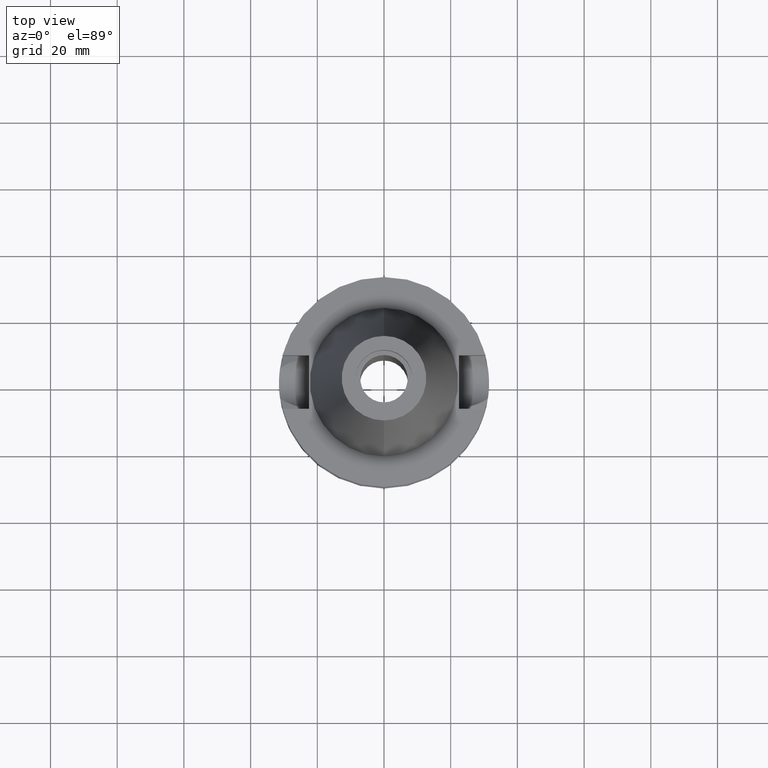
[diagram: clean part render]
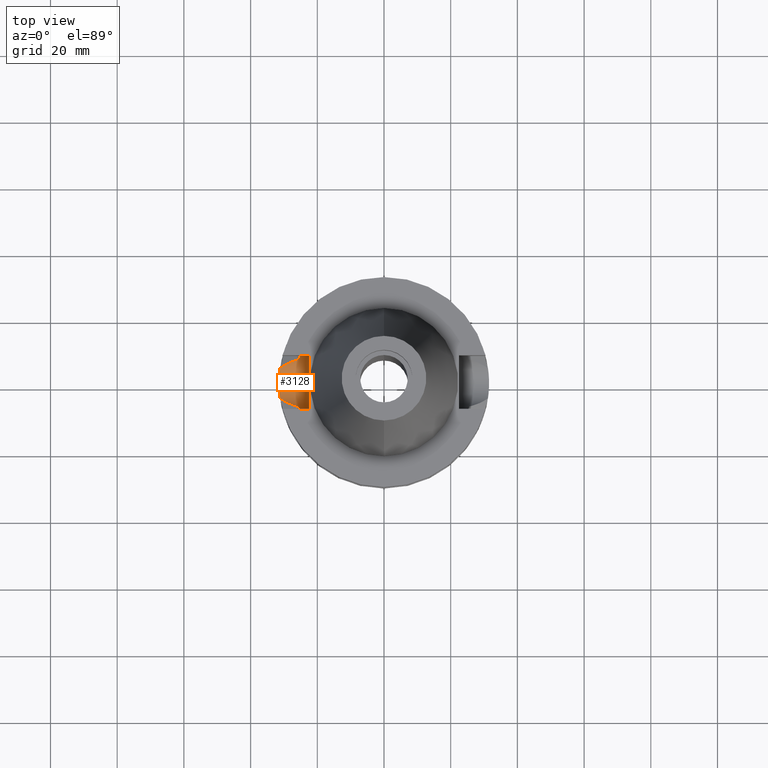
[diagram: same view with one face highlighted and labeled with its STEP entity id]
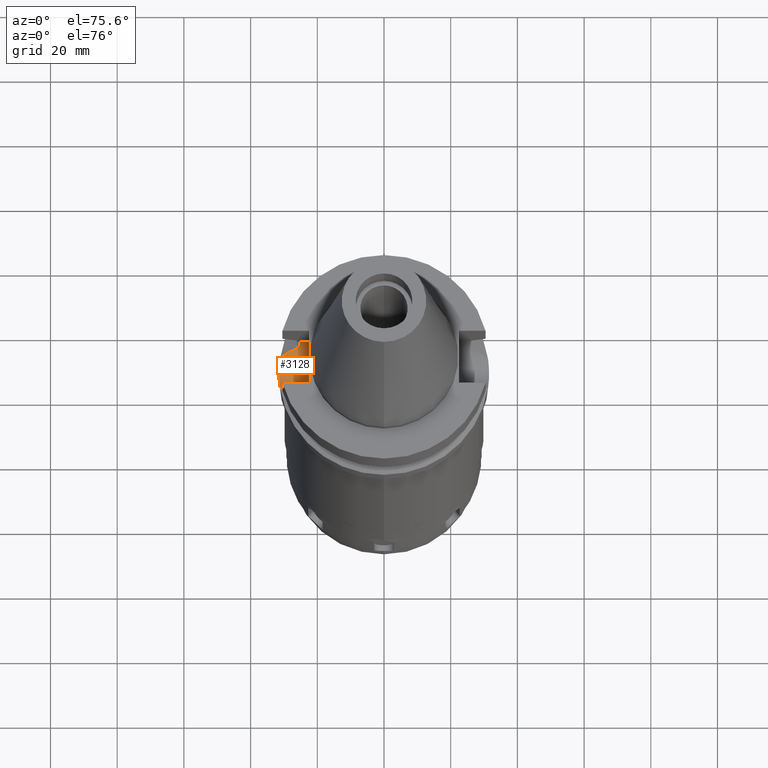
[diagram: same view with one face highlighted and labeled with its STEP entity id]
A machine part, top view. The second image highlights one B-rep face of the part: STEP entity #3128.
A second angle (auxiliary view) of the same face is appended — the face is thin or edge-on in the first view.
In plain terms, the highlighted cylindrical surface (edge-blend (fillet) strip) has radius 8.05 mm, axis along (-1, 0, 0).
Its self-contained STEP definition (entity closure, byte-faithful):
#177=CARTESIAN_POINT('',(-2.25E1,1.807578675541E-14,-1.495E1));
#178=DIRECTION('',(1.E0,0.E0,0.E0));
#179=DIRECTION('',(0.E0,-1.E0,1.919789379228E-14));
#180=AXIS2_PLACEMENT_3D('',#177,#178,#179);
#185=CARTESIAN_POINT('',(-2.25E1,1.807578675541E-14,-1.495E1));
#186=DIRECTION('',(1.E0,0.E0,0.E0));
#187=DIRECTION('',(0.E0,0.E0,-1.E0));
#188=AXIS2_PLACEMENT_3D('',#185,#186,#187);
#241=CARTESIAN_POINT('',(-2.553175183775E1,-7.097862220093E0,
-1.874774300139E1));
#242=CARTESIAN_POINT('',(-2.547273355385E1,-7.310157152257E0,
-1.835097045043E1));
#243=CARTESIAN_POINT('',(-2.536986615209E1,-7.660410954131E0,
-1.753906447429E1));
#244=CARTESIAN_POINT('',(-2.527036702732E1,-7.979519632304E0,
-1.625487272871E1));
#245=CARTESIAN_POINT('',(-2.524772266958E1,-8.05E0,-1.538854744639E1));
#246=CARTESIAN_POINT('',(-2.524772266958E1,-8.05E0,-1.495E1));
#361=CARTESIAN_POINT('',(-2.524772266958E1,8.05E0,-1.495E1));
#362=CARTESIAN_POINT('',(-2.524772266958E1,8.05E0,-1.538860417814E1));
#363=CARTESIAN_POINT('',(-2.527037294137E1,7.979501248482E0,-1.625500458205E1));
#364=CARTESIAN_POINT('',(-2.536987999923E1,7.660365355164E0,-1.753918939352E1));
#365=CARTESIAN_POINT('',(-2.547274096125E1,7.310130507061E0,-1.835102024947E1));
#366=CARTESIAN_POINT('',(-2.553175183775E1,7.097862220093E0,-1.874774300139E1));
#444=DIRECTION('',(1.E0,1.551559937893E-14,-3.620306521750E-14));
#445=VECTOR('',#444,2.747722669580E0);
#446=CARTESIAN_POINT('',(-2.524772266958E1,8.05E0,-1.495E1));
#447=LINE('',#446,#445);
#451=DIRECTION('',(-1.E0,1.616208268639E-14,-1.034373291929E-14));
#452=VECTOR('',#451,2.747722669580E0);
#453=CARTESIAN_POINT('',(-2.25E1,-8.05E0,-1.495E1));
#454=LINE('',#453,#452);
#458=CARTESIAN_POINT('',(-3.117899877609E1,-4.485536235554E0,
-2.163449434733E1));
#459=CARTESIAN_POINT('',(-3.065531755812E1,-4.882836756047E0,
-2.136789140200E1));
#460=CARTESIAN_POINT('',(-2.952284060775E1,-5.594520374978E0,
-2.079088906089E1));
#461=CARTESIAN_POINT('',(-2.756028574836E1,-6.476066374403E0,
-1.978834968110E1));
#462=CARTESIAN_POINT('',(-2.621787147931E1,-6.909259687765E0,
-1.910023520224E1));
#463=CARTESIAN_POINT('',(-2.553175183775E1,-7.097862220093E0,
-1.874774300139E1));
#553=CARTESIAN_POINT('',(-2.553175183775E1,7.097862220093E0,-1.874774300139E1));
#554=CARTESIAN_POINT('',(-2.603953663629E1,6.958280880220E0,-1.900861613539E1));
#555=CARTESIAN_POINT('',(-2.700048742290E1,6.657506736344E0,-1.950144570322E1));
#556=CARTESIAN_POINT('',(-2.827161354180E1,6.160881158949E0,-2.015174820963E1));
#557=CARTESIAN_POINT('',(-2.938928098972E1,5.628044158009E0,-2.072246861637E1));
#558=CARTESIAN_POINT('',(-3.036108971753E1,5.068957706573E0,-2.121798366180E1));
#559=CARTESIAN_POINT('',(-3.092125771962E1,4.681076293844E0,-2.150327993209E1));
#560=CARTESIAN_POINT('',(-3.117899877609E1,4.485536235554E0,-2.163449434733E1));
#607=CARTESIAN_POINT('',(-3.117899877609E1,4.485536235554E0,-2.163449434733E1));
#608=CARTESIAN_POINT('',(-3.125758072304E1,3.939312484576E0,-2.200103013903E1));
#609=CARTESIAN_POINT('',(-3.139261492804E1,2.797834037506E0,-2.257699109906E1));
#610=CARTESIAN_POINT('',(-3.150507135618E1,9.439074662091E-1,
-2.302018781410E1));
#611=CARTESIAN_POINT('',(-3.150408832850E1,-9.724472448942E-1,
-2.301641485238E1));
#612=CARTESIAN_POINT('',(-3.139073449818E1,-2.815725758122E0,
-2.256928971780E1));
#613=CARTESIAN_POINT('',(-3.125667710255E1,-3.945593557940E0,
-2.199681531280E1));
#614=CARTESIAN_POINT('',(-3.117899877609E1,-4.485536235554E0,
-2.163449434733E1));
#2660=VERTEX_POINT('',#458);
#2661=VERTEX_POINT('',#463);
#2664=VERTEX_POINT('',#553);
#2665=VERTEX_POINT('',#560);
#2668=VERTEX_POINT('',#361);
#2669=CARTESIAN_POINT('',(-2.25E1,8.05E0,-1.495E1));
#2670=VERTEX_POINT('',#2669);
#2671=CARTESIAN_POINT('',(-2.25E1,1.856870709207E-14,-2.3E1));
#2672=VERTEX_POINT('',#2671);
#2673=CARTESIAN_POINT('',(-2.25E1,-8.05E0,-1.495E1));
#2674=VERTEX_POINT('',#2673);
#2675=CARTESIAN_POINT('',(-2.524772266958E1,-8.05E0,-1.495E1));
#2676=VERTEX_POINT('',#2675);
#3109=CARTESIAN_POINT('',(-2.25E1,1.807578675541E-14,-1.495E1));
#3110=DIRECTION('',(-1.E0,0.E0,0.E0));
#3111=DIRECTION('',(0.E0,0.E0,-1.E0));
#3112=AXIS2_PLACEMENT_3D('',#3109,#3110,#3111);
#3113=CYLINDRICAL_SURFACE('',#3112,8.05E0);
#3115=ORIENTED_EDGE('',*,*,#3114,.F.);
#3117=ORIENTED_EDGE('',*,*,#3116,.F.);
#3119=ORIENTED_EDGE('',*,*,#3118,.F.);
#3120=ORIENTED_EDGE('',*,*,#3046,.F.);
#3121=ORIENTED_EDGE('',*,*,#3074,.T.);
#3122=ORIENTED_EDGE('',*,*,#2909,.F.);
#3123=ORIENTED_EDGE('',*,*,#2907,.F.);
#3124=ORIENTED_EDGE('',*,*,#2923,.T.);
#3125=ORIENTED_EDGE('',*,*,#2952,.F.);
#3126=EDGE_LOOP('',(#3115,#3117,#3119,#3120,#3121,#3122,#3123,#3124,#3125));
#3127=FACE_OUTER_BOUND('',#3126,.F.);
#181=CIRCLE('',#180,8.05E0);
#189=CIRCLE('',#188,8.05E0);
#247=B_SPLINE_CURVE_WITH_KNOTS('',3,(#241,#242,#243,#244,#245,#246),
.UNSPECIFIED.,.F.,.F.,(4,1,1,4),(0.E0,3.333333333333E-1,6.666666666667E-1,1.E0),
.UNSPECIFIED.);
#367=B_SPLINE_CURVE_WITH_KNOTS('',3,(#361,#362,#363,#364,#365,#366),
.UNSPECIFIED.,.F.,.F.,(4,1,1,4),(0.E0,3.333333333333E-1,6.666666666667E-1,1.E0),
.UNSPECIFIED.);
#464=B_SPLINE_CURVE_WITH_KNOTS('',3,(#458,#459,#460,#461,#462,#463),
.UNSPECIFIED.,.F.,.F.,(4,1,1,4),(0.E0,3.333333333333E-1,6.666666666667E-1,1.E0),
.UNSPECIFIED.);
#561=B_SPLINE_CURVE_WITH_KNOTS('',3,(#553,#554,#555,#556,#557,#558,#559,#560),
.UNSPECIFIED.,.F.,.F.,(4,1,1,1,1,4),(0.E0,2.E-1,4.E-1,6.E-1,8.E-1,1.E0),
.UNSPECIFIED.);
#615=B_SPLINE_CURVE_WITH_KNOTS('',3,(#607,#608,#609,#610,#611,#612,#613,#614),
.UNSPECIFIED.,.F.,.F.,(4,1,1,1,1,4),(0.E0,2.E-1,4.E-1,6.E-1,8.E-1,1.E0),
.UNSPECIFIED.);
#2907=EDGE_CURVE('',#2674,#2672,#181,.T.);
#2909=EDGE_CURVE('',#2672,#2670,#189,.T.);
#2923=EDGE_CURVE('',#2674,#2676,#454,.T.);
#2952=EDGE_CURVE('',#2661,#2676,#247,.T.);
#3046=EDGE_CURVE('',#2668,#2664,#367,.T.);
#3074=EDGE_CURVE('',#2668,#2670,#447,.T.);
#3114=EDGE_CURVE('',#2660,#2661,#464,.T.);
#3116=EDGE_CURVE('',#2665,#2660,#615,.T.);
#3118=EDGE_CURVE('',#2664,#2665,#561,.T.);
#3128=ADVANCED_FACE('',(#3127),#3113,.F.);